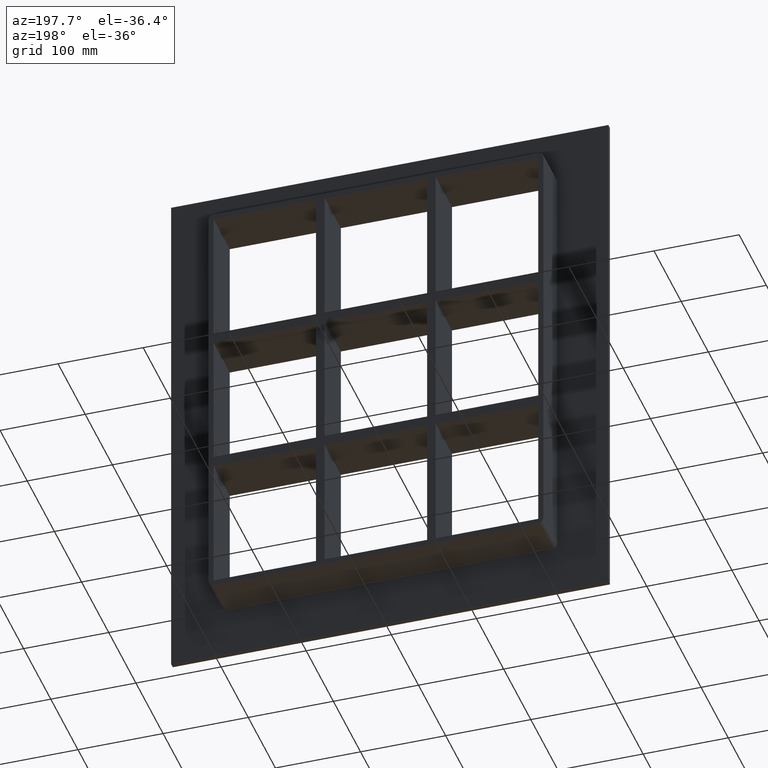
[diagram: clean part render]
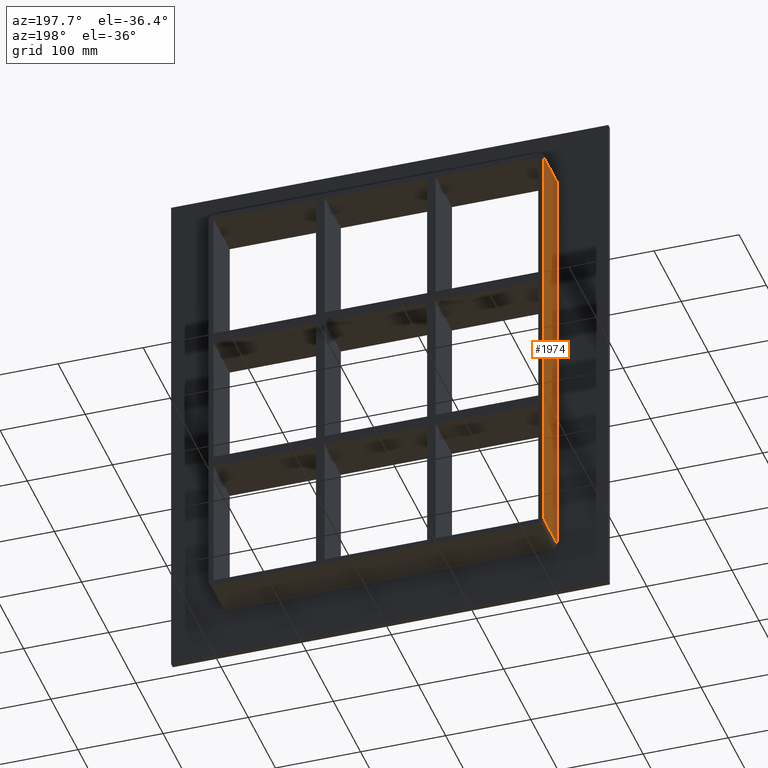
[diagram: same view with one face highlighted and labeled with its STEP entity id]
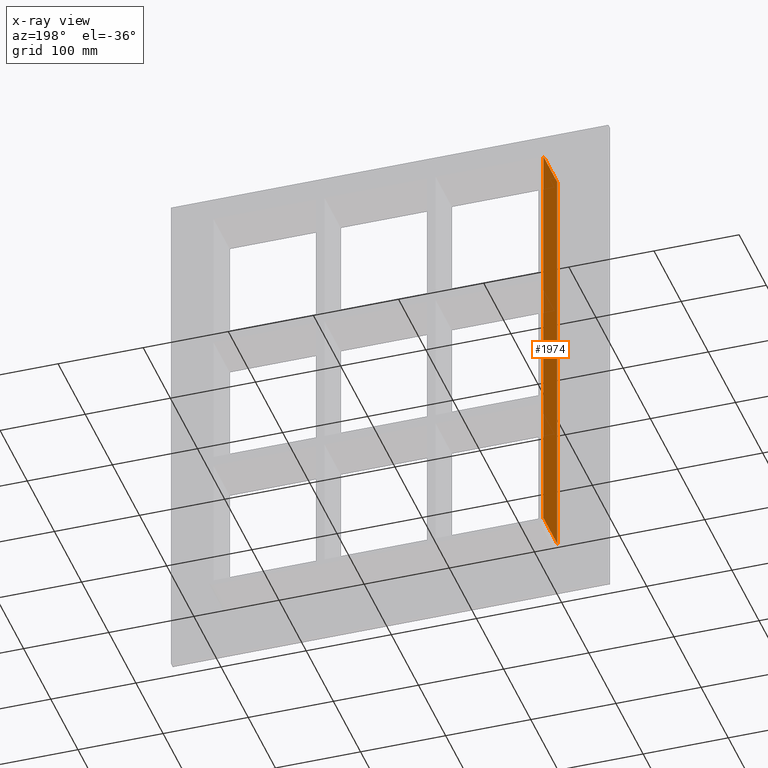
[diagram: x-ray of the same camera — body ghosted, the highlighted face saturated]
A machine part, auxiliary view. The second image highlights one B-rep face of the part: STEP entity #1974.
The next image is the same camera in x-ray: the body ghosted, the highlighted face saturated — about 0% of this face is hidden behind the body in this view.
In plain terms, the highlighted planar face has unit normal (-1, 0, 0).
Its self-contained STEP definition (entity closure, byte-faithful):
#580=CARTESIAN_POINT('',(-196.75000000000006,57.0,-251.25));
#581=VERTEX_POINT('',#580);
#589=CARTESIAN_POINT('',(-196.75000000000006,57.0,251.25));
#590=VERTEX_POINT('',#589);
#591=CARTESIAN_POINT('',(-196.75000000000006,57.0,-251.25));
#592=DIRECTION('',(0.0,0.0,1.0));
#593=VECTOR('',#592,502.5);
#594=LINE('',#591,#593);
#595=EDGE_CURVE('',#581,#590,#594,.T.);
#1473=CARTESIAN_POINT('',(-196.75000000000006,6.000000000000001,-251.25));
#1474=VERTEX_POINT('',#1473);
#1524=CARTESIAN_POINT('',(-196.75000000000006,6.000000000000001,251.25));
#1525=VERTEX_POINT('',#1524);
#1533=CARTESIAN_POINT('',(-196.75000000000006,6.000000000000001,-251.25));
#1534=DIRECTION('',(0.0,0.0,1.0));
#1535=VECTOR('',#1534,502.5);
#1536=LINE('',#1533,#1535);
#1537=EDGE_CURVE('',#1474,#1525,#1536,.T.);
#1947=CARTESIAN_POINT('',(-196.75000000000006,6.000000000000001,-251.25));
#1948=DIRECTION('',(0.0,1.0,0.0));
#1949=VECTOR('',#1948,51.0);
#1950=LINE('',#1947,#1949);
#1951=EDGE_CURVE('',#1474,#581,#1950,.T.);
#1958=CARTESIAN_POINT('',(-196.75000000000006,0.0,-257.25));
#1959=DIRECTION('',(-1.0,0.0,0.0));
#1960=DIRECTION('',(0.0,0.0,1.0));
#1961=AXIS2_PLACEMENT_3D('',#1958,#1959,#1960);
#1962=PLANE('',#1961);
#1963=ORIENTED_EDGE('',*,*,#1537,.T.);
#1964=CARTESIAN_POINT('',(-196.75000000000006,57.0,251.25));
#1965=DIRECTION('',(0.0,-1.0,0.0));
#1966=VECTOR('',#1965,51.0);
#1967=LINE('',#1964,#1966);
#1968=EDGE_CURVE('',#590,#1525,#1967,.T.);
#1969=ORIENTED_EDGE('',*,*,#1968,.F.);
#1970=ORIENTED_EDGE('',*,*,#595,.F.);
#1971=ORIENTED_EDGE('',*,*,#1951,.F.);
#1972=EDGE_LOOP('',(#1963,#1969,#1970,#1971));
#1973=FACE_OUTER_BOUND('',#1972,.T.);
#1974=ADVANCED_FACE('',(#1973),#1962,.T.);